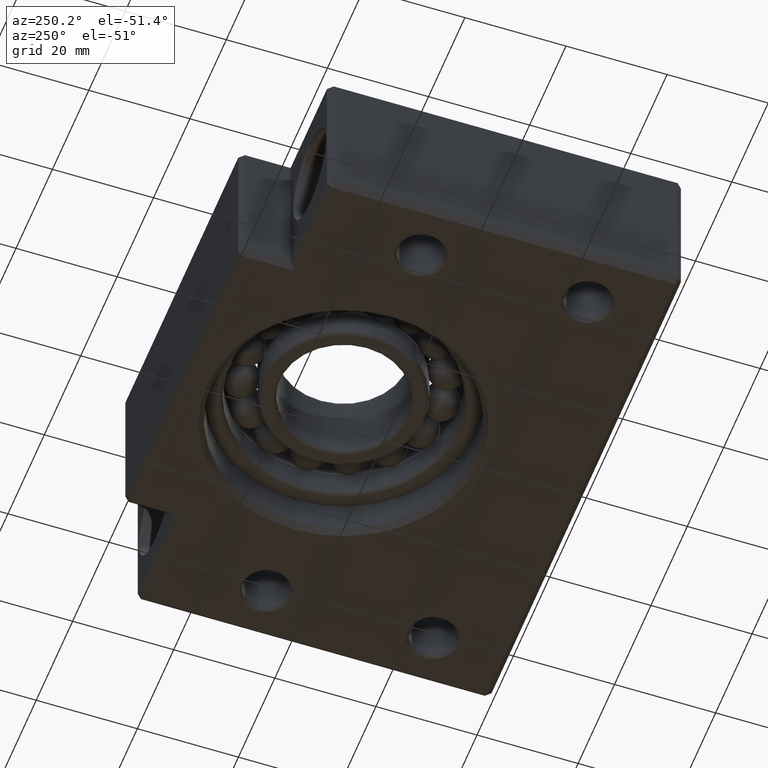
[diagram: clean part render]
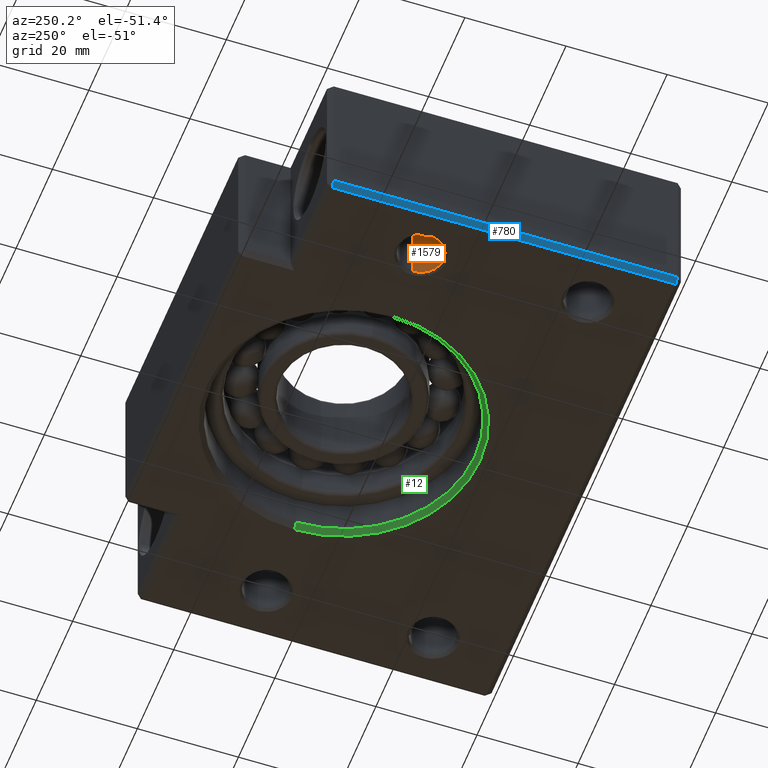
[diagram: same view with three faces highlighted in distinct colors, each labeled with its STEP entity id]
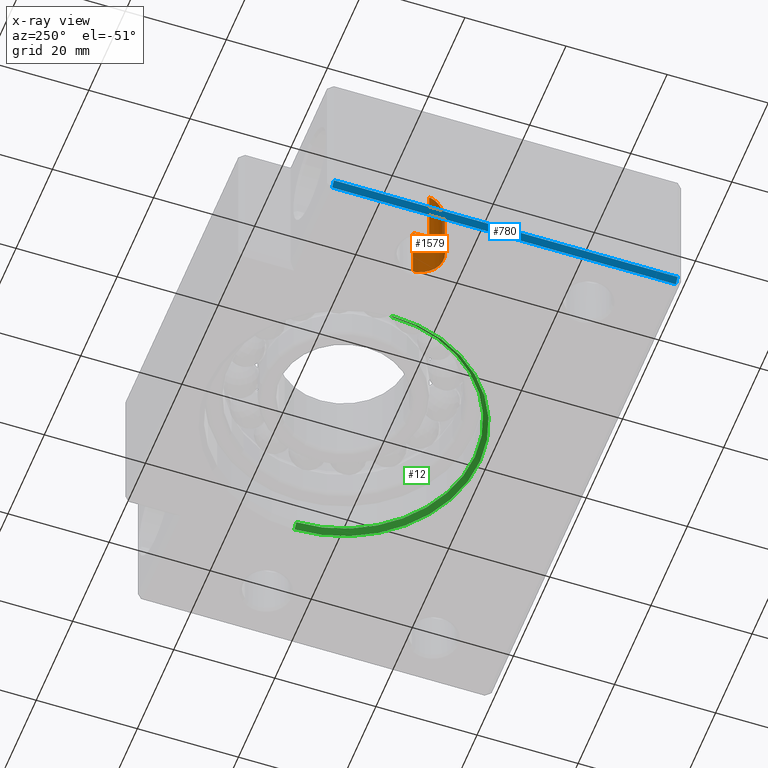
[diagram: x-ray of the same camera — body ghosted, the three highlighted faces saturated]
A machine part, auxiliary view with three faces highlighted in distinct colors.
The next image is the same camera in x-ray (body ghosted, the three faces saturated) — at least one of them is partly hidden behind the body in this view.
Their STEP definitions:

[orange] entity #1579 — the highlighted cylindrical surface (edge-blend (fillet) strip) has radius 4.5 mm, axis along (-0, -0, 1).
#335 = VERTEX_POINT ( 'NONE', #2262 ) ;
#336 = VERTEX_POINT ( 'NONE', #2261 ) ;
#337 = EDGE_CURVE ( 'NONE', #335, #336, #2260, .T. ) ;
#1408 = EDGE_CURVE ( 'NONE', #1409, #1413, #4157, .T. ) ;
#1409 = VERTEX_POINT ( 'NONE', #4156 ) ;
#1413 = VERTEX_POINT ( 'NONE', #4203 ) ;
#1503 = EDGE_CURVE ( 'NONE', #336, #1409, #4550, .T. ) ;
#1504 = ORIENTED_EDGE ( 'NONE', *, *, #1408, .T. ) ;
#1561 = ORIENTED_EDGE ( 'NONE', *, *, #1562, .T. ) ;
#1562 = EDGE_CURVE ( 'NONE', #1413, #1563, #4708, .T. ) ;
#1563 = VERTEX_POINT ( 'NONE', #4709 ) ;
#1564 = ORIENTED_EDGE ( 'NONE', *, *, #1565, .F. ) ;
#1565 = EDGE_CURVE ( 'NONE', #335, #1563, #4755, .T. ) ;
#1579 = ADVANCED_FACE ( 'NONE', ( #4786 ), #4785, .F. ) ;
#1580 = EDGE_LOOP ( 'NONE', ( #1581, #1582, #1504, #1561, #1564 ) ) ;
#1581 = ORIENTED_EDGE ( 'NONE', *, *, #337, .T. ) ;
#1582 = ORIENTED_EDGE ( 'NONE', *, *, #1503, .T. ) ;
#2256 = DIRECTION ( 'NONE',  ( 1.000000000000000000, 0.0000000000000000000, 0.0000000000000000000 ) ) ;
#2257 = DIRECTION ( 'NONE',  ( -0.0000000000000000000, -0.0000000000000000000, -1.000000000000000000 ) ) ;
#2258 = CARTESIAN_POINT ( 'NONE',  ( -42.50000000000000000, 48.00000000000000000, -14.49999999999998900 ) ) ;
#2259 = AXIS2_PLACEMENT_3D ( 'NONE', #2258, #2257, #2256 ) ;
#2260 = CIRCLE ( 'NONE', #2259, 4.499999999999997300 ) ;
#2261 = CARTESIAN_POINT ( 'NONE',  ( -47.00000000000000000, 48.00000000000000000, -14.49999999999998900 ) ) ;
#2262 = CARTESIAN_POINT ( 'NONE',  ( -38.00000000000000700, 48.00000000000000000, -14.49999999999998900 ) ) ;
#4153 = CARTESIAN_POINT ( 'NONE',  ( -46.99184049070769500, 47.68769330913776400, -3.173978460364848900 ) ) ;
#4154 = CARTESIAN_POINT ( 'NONE',  ( -47.00000000000000700, 47.84331517180627500, -3.162277660168372900 ) ) ;
#4155 = CARTESIAN_POINT ( 'NONE',  ( -47.00000000000000000, 48.00000000000000000, -3.162277660168373300 ) ) ;
#4156 = CARTESIAN_POINT ( 'NONE',  ( -47.00000000000000000, 48.00000000000000000, -3.162277660168373300 ) ) ;
#4157 = B_SPLINE_CURVE_WITH_KNOTS ( 'NONE', 3,
 ( #4155, #4154, #4153, #4201, #4200, #4199, #4198, #4197, #4196, #4195, #4194, #4193, #4192, #4191, #4190, #4189, #4188, #4187, #4186, #4185, #4184, #4183 ),
 .UNSPECIFIED., .F., .F.,
 ( 4, 2, 2, 2, 2, 2, 2, 2, 2, 2, 4 ),
 ( 0.01498966208815477200, 0.01545861926658187400, 0.01592757644500897600, 0.01686549080186320100, 0.01780340515871742600, 0.01874131951557165100, 0.01967923387242587200, 0.02061714822928009700, 0.02155506258613432100, 0.02202401976456144100, 0.02249297694298856400 ),
 .UNSPECIFIED. ) ;
#4183 = CARTESIAN_POINT ( 'NONE',  ( -42.50000000000000000, 43.50000000000000700, -5.499999999999994700 ) ) ;
#4184 = CARTESIAN_POINT ( 'NONE',  ( -42.65612403480967200, 43.50000000000001400, -5.499999999999996400 ) ) ;
#4185 = CARTESIAN_POINT ( 'NONE',  ( -42.81203502052666500, 43.50810281110969400, -5.493364378552475300 ) ) ;
#4186 = CARTESIAN_POINT ( 'NONE',  ( -43.12342836832824800, 43.54064541899174400, -5.466786544136129900 ) ) ;
#4187 = CARTESIAN_POINT ( 'NONE',  ( -43.27982136488772400, 43.56536980764217000, -5.446613067299010100 ) ) ;
#4188 = CARTESIAN_POINT ( 'NONE',  ( -43.73513874174611300, 43.66171721702398400, -5.368360397055015600 ) ) ;
#4189 = CARTESIAN_POINT ( 'NONE',  ( -44.02402975940270800, 43.75524684931586000, -5.292689612830897300 ) ) ;
#4190 = CARTESIAN_POINT ( 'NONE',  ( -44.57576275909741500, 43.99602635051974200, -5.101611413392579000 ) ) ;
#4191 = CARTESIAN_POINT ( 'NONE',  ( -44.83152902650350300, 44.14056180854458900, -4.988396226770351700 ) ) ;
#4192 = CARTESIAN_POINT ( 'NONE',  ( -45.29998928176196000, 44.46568949056381100, -4.741327297150372800 ) ) ;
#4193 = CARTESIAN_POINT ( 'NONE',  ( -45.51462238888190400, 44.64721163175739300, -4.606622288732088700 ) ) ;
#4194 = CARTESIAN_POINT ( 'NONE',  ( -45.90871470856163900, 45.04876262808182500, -4.323144815319842000 ) ) ;
#4195 = CARTESIAN_POINT ( 'NONE',  ( -46.08422531764438900, 45.26501941656664500, -4.177026681382108600 ) ) ;
#4196 = CARTESIAN_POINT ( 'NONE',  ( -46.39271219881602800, 45.72544913079760700, -3.891145687559123300 ) ) ;
#4197 = CARTESIAN_POINT ( 'NONE',  ( -46.52661515874281400, 45.97032531560477500, -3.750450289997560500 ) ) ;
#4198 = CARTESIAN_POINT ( 'NONE',  ( -46.75280729843204600, 46.50105402248937700, -3.491867279374059900 ) ) ;
#4199 = CARTESIAN_POINT ( 'NONE',  ( -46.84186795678693500, 46.77935936865962000, -3.377716779397096600 ) ) ;
#4200 = CARTESIAN_POINT ( 'NONE',  ( -46.93519225268126900, 47.22410380332219400, -3.252962754283307500 ) ) ;
#4201 = CARTESIAN_POINT ( 'NONE',  ( -46.95958010707526100, 47.37846019299080100, -3.219148261481557400 ) ) ;
#4203 = CARTESIAN_POINT ( 'NONE',  ( -42.50000000000000000, 43.50000000000000700, -5.499999999999994700 ) ) ;
#4542 = DIRECTION ( 'NONE',  ( -0.0000000000000000000, -0.0000000000000000000, 1.000000000000000000 ) ) ;
#4543 = VECTOR ( 'NONE', #4542, 1000.000000000000000 ) ;
#4544 = CARTESIAN_POINT ( 'NONE',  ( -47.00000000000000000, 48.00000000000000000, 15.00000000000000000 ) ) ;
#4550 = LINE ( 'NONE', #4544, #4543 ) ;
#4707 = CARTESIAN_POINT ( 'NONE',  ( -42.50000000000000000, 43.50000000000000700, -5.499999999999994700 ) ) ;
#4708 = B_SPLINE_CURVE_WITH_KNOTS ( 'NONE', 3,
 ( #4707, #4750, #4749, #4748, #4747, #4746, #4745, #4744, #4743, #4742, #4741, #4740, #4739, #4738, #4737, #4736, #4735, #4734, #4733, #4732 ),
 .UNSPECIFIED., .F., .F.,
 ( 4, 2, 2, 2, 2, 2, 2, 2, 2, 4 ),
 ( 0.02249297694298856400, 0.02342838801055431600, 0.02436379907812006800, 0.02529921014568582000, 0.02623462121325157600, 0.02717003228081732800, 0.02810544334838308000, 0.02857314888216594800, 0.02904085441594881800, 0.02997626548351454600 ),
 .UNSPECIFIED. ) ;
#4709 = CARTESIAN_POINT ( 'NONE',  ( -37.99999999999997200, 48.00000000000008500, -3.162277660168646400 ) ) ;
#4732 = CARTESIAN_POINT ( 'NONE',  ( -37.99999999999997200, 48.00000000000008500, -3.162277660168646400 ) ) ;
#4733 = CARTESIAN_POINT ( 'NONE',  ( -38.00000000000001400, 47.68295675331348300, -3.162277660168374200 ) ) ;
#4734 = CARTESIAN_POINT ( 'NONE',  ( -38.03334859032250400, 47.37466200491931500, -3.210887846413939900 ) ) ;
#4735 = CARTESIAN_POINT ( 'NONE',  ( -38.12660413519616000, 46.92929265640271600, -3.335581284299995000 ) ) ;
#4736 = CARTESIAN_POINT ( 'NONE',  ( -38.16527567737601600, 46.78274594317683500, -3.386025784699174600 ) ) ;
#4737 = CARTESIAN_POINT ( 'NONE',  ( -38.25380884481706500, 46.50286838733303100, -3.496407619463432100 ) ) ;
#4738 = CARTESIAN_POINT ( 'NONE',  ( -38.30389522583044500, 46.36818563457101300, -3.556659227453564200 ) ) ;
#4739 = CARTESIAN_POINT ( 'NONE',  ( -38.47051759971829200, 45.97670437603994700, -3.747232596193719200 ) ) ;
#4740 = CARTESIAN_POINT ( 'NONE',  ( -38.60319240111290600, 45.73223606899345100, -3.887109697318456900 ) ) ;
#4741 = CARTESIAN_POINT ( 'NONE',  ( -38.91320931372339200, 45.26818827838413000, -4.174884888780860100 ) ) ;
#4742 = CARTESIAN_POINT ( 'NONE',  ( -39.08955926132456000, 45.05095895412519300, -4.321673437044333700 ) ) ;
#4743 = CARTESIAN_POINT ( 'NONE',  ( -39.48024623191749800, 44.65201011016714700, -4.603157015421392600 ) ) ;
#4744 = CARTESIAN_POINT ( 'NONE',  ( -39.69740194995087300, 44.46748455781163000, -4.739961582604533600 ) ) ;
#4745 = CARTESIAN_POINT ( 'NONE',  ( -40.17140640226299600, 44.13854003827349700, -4.989934217129948600 ) ) ;
#4746 = CARTESIAN_POINT ( 'NONE',  ( -40.42591212005901700, 43.99521846088146000, -5.102248925564466300 ) ) ;
#4747 = CARTESIAN_POINT ( 'NONE',  ( -40.97623714138175200, 43.75520760690488200, -5.292724381907422800 ) ) ;
#4748 = CARTESIAN_POINT ( 'NONE',  ( -41.26775292404205000, 43.66100479931756700, -5.368937829417830300 ) ) ;
#4749 = CARTESIAN_POINT ( 'NONE',  ( -41.87187102911691000, 43.53337194253992900, -5.472602696002892000 ) ) ;
#4750 = CARTESIAN_POINT ( 'NONE',  ( -42.18858531910355200, 43.50000000000001400, -5.499999999999995600 ) ) ;
#4752 = DIRECTION ( 'NONE',  ( -0.0000000000000000000, -0.0000000000000000000, 1.000000000000000000 ) ) ;
#4753 = VECTOR ( 'NONE', #4752, 1000.000000000000000 ) ;
#4754 = CARTESIAN_POINT ( 'NONE',  ( -38.00000000000000700, 48.00000000000000000, 15.00000000000000000 ) ) ;
#4755 = LINE ( 'NONE', #4754, #4753 ) ;
#4760 = DIRECTION ( 'NONE',  ( 1.000000000000000000, 0.0000000000000000000, 0.0000000000000000000 ) ) ;
#4761 = DIRECTION ( 'NONE',  ( -0.0000000000000000000, -0.0000000000000000000, 1.000000000000000000 ) ) ;
#4762 = CARTESIAN_POINT ( 'NONE',  ( -42.50000000000000000, 48.00000000000000000, 15.00000000000000000 ) ) ;
#4784 = AXIS2_PLACEMENT_3D ( 'NONE', #4762, #4761, #4760 ) ;
#4785 = CYLINDRICAL_SURFACE ( 'NONE', #4784, 4.499999999999997300 ) ;
#4786 = FACE_OUTER_BOUND ( 'NONE', #1580, .T. ) ;

[blue] entity #780 — the highlighted planar face has unit normal (0.7071, 0, 0.7071).
#442 = VERTEX_POINT ( 'NONE', #2393 ) ;
#444 = VERTEX_POINT ( 'NONE', #2454 ) ;
#448 = EDGE_CURVE ( 'NONE', #444, #442, #2448, .T. ) ;
#449 = VERTEX_POINT ( 'NONE', #2444 ) ;
#450 = VERTEX_POINT ( 'NONE', #2443 ) ;
#463 = EDGE_CURVE ( 'NONE', #449, #450, #2426, .T. ) ;
#754 = EDGE_CURVE ( 'NONE', #449, #442, #2906, .T. ) ;
#773 = ORIENTED_EDGE ( 'NONE', *, *, #463, .F. ) ;
#775 = EDGE_LOOP ( 'NONE', ( #776, #777, #778, #773 ) ) ;
#776 = ORIENTED_EDGE ( 'NONE', *, *, #754, .T. ) ;
#777 = ORIENTED_EDGE ( 'NONE', *, *, #448, .F. ) ;
#778 = ORIENTED_EDGE ( 'NONE', *, *, #779, .F. ) ;
#779 = EDGE_CURVE ( 'NONE', #450, #444, #2935, .T. ) ;
#780 = ADVANCED_FACE ( 'NONE', ( #2994 ), #2993, .F. ) ;
#2393 = CARTESIAN_POINT ( 'NONE',  ( -51.99999999999997900, 68.99999999999997200, -15.00000000000000000 ) ) ;
#2424 = CARTESIAN_POINT ( 'NONE',  ( -53.00000000000000700, 70.00000000000000000, -13.99999999999997200 ) ) ;
#2426 = LINE ( 'NONE', #2424, #2487 ) ;
#2443 = CARTESIAN_POINT ( 'NONE',  ( -52.99999999999998600, 1.000000000000028900, -13.99999999999997200 ) ) ;
#2444 = CARTESIAN_POINT ( 'NONE',  ( -53.00000000000000700, 68.99999999999997200, -13.99999999999997200 ) ) ;
#2445 = DIRECTION ( 'NONE',  ( -2.973811673103097700E-016, 1.000000000000000000, 0.0000000000000000000 ) ) ;
#2446 = VECTOR ( 'NONE', #2445, 1000.000000000000000 ) ;
#2447 = CARTESIAN_POINT ( 'NONE',  ( -51.99999999999995700, 2.973811673103182500E-016, -15.00000000000000000 ) ) ;
#2448 = LINE ( 'NONE', #2447, #2446 ) ;
#2454 = CARTESIAN_POINT ( 'NONE',  ( -51.99999999999995700, 1.000000000000028900, -15.00000000000000000 ) ) ;
#2486 = DIRECTION ( 'NONE',  ( 2.973811673103097700E-016, -1.000000000000000000, 0.0000000000000000000 ) ) ;
#2487 = VECTOR ( 'NONE', #2486, 1000.000000000000000 ) ;
#2906 = LINE ( 'NONE', #2964, #2963 ) ;
#2934 = CARTESIAN_POINT ( 'NONE',  ( -52.49999999999997200, 1.000000000000029100, -14.49999999999998600 ) ) ;
#2935 = LINE ( 'NONE', #2934, #2996 ) ;
#2962 = DIRECTION ( 'NONE',  ( 0.7071067811865474600, 0.0000000000000000000, -0.7071067811865474600 ) ) ;
#2963 = VECTOR ( 'NONE', #2962, 1000.000000000000100 ) ;
#2964 = CARTESIAN_POINT ( 'NONE',  ( -51.99999999999997900, 68.99999999999997200, -15.00000000000000000 ) ) ;
#2988 = DIRECTION ( 'NONE',  ( 0.7071067811865474600, 0.0000000000000000000, -0.7071067811865474600 ) ) ;
#2989 = DIRECTION ( 'NONE',  ( 0.7071067811865475700, 2.102802400022912600E-016, 0.7071067811865475700 ) ) ;
#2990 = AXIS2_PLACEMENT_3D ( 'NONE', #2992, #2989, #2988 ) ;
#2992 = CARTESIAN_POINT ( 'NONE',  ( -53.00000000000000700, 70.00000000000000000, -13.99999999999997200 ) ) ;
#2993 = PLANE ( 'NONE',  #2990 ) ;
#2994 = FACE_OUTER_BOUND ( 'NONE', #775, .T. ) ;
#2995 = DIRECTION ( 'NONE',  ( 0.7071067811865474600, -0.0000000000000000000, -0.7071067811865474600 ) ) ;
#2996 = VECTOR ( 'NONE', #2995, 1000.000000000000100 ) ;

[green] entity #12 — the highlighted conical surface has half-angle 45 deg.
#9 = EDGE_LOOP ( 'NONE', ( #11, #30, #75, #64 ) ) ;
#11 = ORIENTED_EDGE ( 'NONE', *, *, #24, .F. ) ;
#12 = ADVANCED_FACE ( 'NONE', ( #1634 ), #1632, .F. ) ;
#24 = EDGE_CURVE ( 'NONE', #69, #25, #1669, .T. ) ;
#25 = VERTEX_POINT ( 'NONE', #1664 ) ;
#28 = VERTEX_POINT ( 'NONE', #1657 ) ;
#29 = EDGE_CURVE ( 'NONE', #69, #28, #1656, .T. ) ;
#30 = ORIENTED_EDGE ( 'NONE', *, *, #29, .T. ) ;
#31 = EDGE_CURVE ( 'NONE', #71, #28, #1659, .T. ) ;
#47 = EDGE_CURVE ( 'NONE', #25, #71, #1754, .T. ) ;
#64 = ORIENTED_EDGE ( 'NONE', *, *, #47, .F. ) ;
#69 = VERTEX_POINT ( 'NONE', #1761 ) ;
#71 = VERTEX_POINT ( 'NONE', #1756 ) ;
#75 = ORIENTED_EDGE ( 'NONE', *, *, #31, .F. ) ;
#1628 = DIRECTION ( 'NONE',  ( -1.000000000000000000, 0.0000000000000000000, 0.0000000000000000000 ) ) ;
#1629 = DIRECTION ( 'NONE',  ( -0.0000000000000000000, -0.0000000000000000000, -1.000000000000000000 ) ) ;
#1630 = CARTESIAN_POINT ( 'NONE',  ( 1.124572892961660300E-014, 48.00000000000000000, -15.00000000000000000 ) ) ;
#1631 = AXIS2_PLACEMENT_3D ( 'NONE', #1630, #1629, #1628 ) ;
#1632 = CONICAL_SURFACE ( 'NONE', #1631, 27.00000000000001100, 0.7853981633974501700 ) ;
#1634 = FACE_OUTER_BOUND ( 'NONE', #9, .T. ) ;
#1656 = LINE ( 'NONE', #1662, #1661 ) ;
#1657 = CARTESIAN_POINT ( 'NONE',  ( 27.00000000000002100, 48.00000000000000000, -15.00000000000000000 ) ) ;
#1659 = CIRCLE ( 'NONE', #1697, 27.00000000000001100 ) ;
#1660 = DIRECTION ( 'NONE',  ( 0.7071067811865487900, 8.659274570719369000E-017, -0.7071067811865463500 ) ) ;
#1661 = VECTOR ( 'NONE', #1660, 1000.000000000000000 ) ;
#1662 = CARTESIAN_POINT ( 'NONE',  ( 27.00000000000002100, 48.00000000000000000, -15.00000000000000000 ) ) ;
#1664 = CARTESIAN_POINT ( 'NONE',  ( -25.99999999999999300, 48.00000000000000000, -13.99999999999999500 ) ) ;
#1665 = DIRECTION ( 'NONE',  ( 1.000000000000000000, 0.0000000000000000000, 0.0000000000000000000 ) ) ;
#1666 = DIRECTION ( 'NONE',  ( -0.0000000000000000000, -0.0000000000000000000, -1.000000000000000000 ) ) ;
#1667 = CARTESIAN_POINT ( 'NONE',  ( 1.124572892961660300E-014, 48.00000000000000000, -13.99999999999999500 ) ) ;
#1668 = AXIS2_PLACEMENT_3D ( 'NONE', #1667, #1666, #1665 ) ;
#1669 = CIRCLE ( 'NONE', #1668, 26.00000000000000400 ) ;
#1694 = DIRECTION ( 'NONE',  ( 1.000000000000000000, 0.0000000000000000000, 0.0000000000000000000 ) ) ;
#1695 = DIRECTION ( 'NONE',  ( -0.0000000000000000000, 0.0000000000000000000, 1.000000000000000000 ) ) ;
#1696 = CARTESIAN_POINT ( 'NONE',  ( 1.124572892961660300E-014, 48.00000000000000000, -15.00000000000000000 ) ) ;
#1697 = AXIS2_PLACEMENT_3D ( 'NONE', #1696, #1695, #1694 ) ;
#1751 = DIRECTION ( 'NONE',  ( -0.7071067811865487900, 0.0000000000000000000, -0.7071067811865463500 ) ) ;
#1752 = VECTOR ( 'NONE', #1751, 1000.000000000000000 ) ;
#1753 = CARTESIAN_POINT ( 'NONE',  ( -27.00000000000000000, 48.00000000000000000, -15.00000000000000000 ) ) ;
#1754 = LINE ( 'NONE', #1753, #1752 ) ;
#1756 = CARTESIAN_POINT ( 'NONE',  ( -27.00000000000000000, 48.00000000000000000, -15.00000000000000000 ) ) ;
#1761 = CARTESIAN_POINT ( 'NONE',  ( 26.00000000000001400, 48.00000000000000000, -13.99999999999999500 ) ) ;